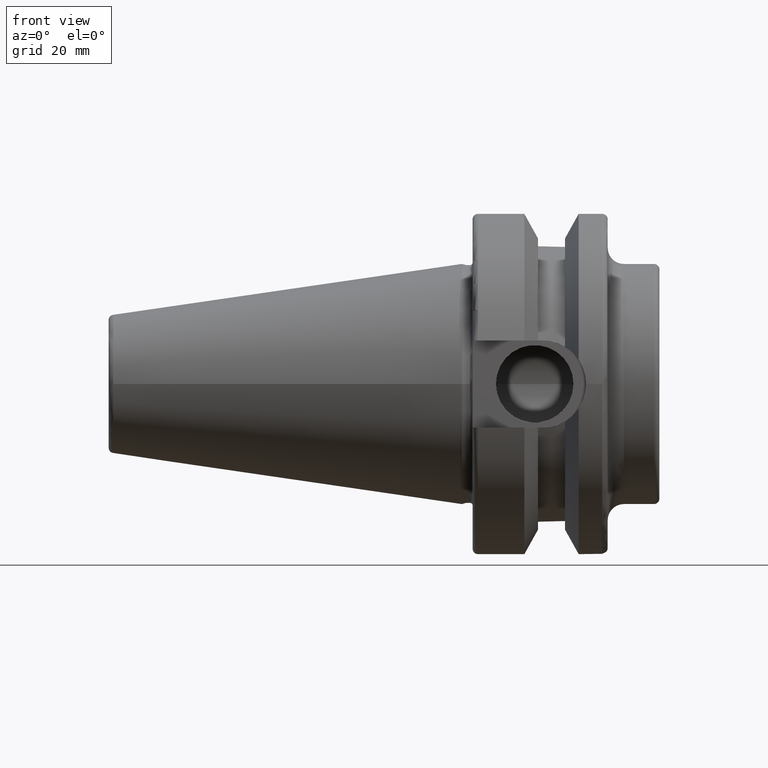
[diagram: clean part render]
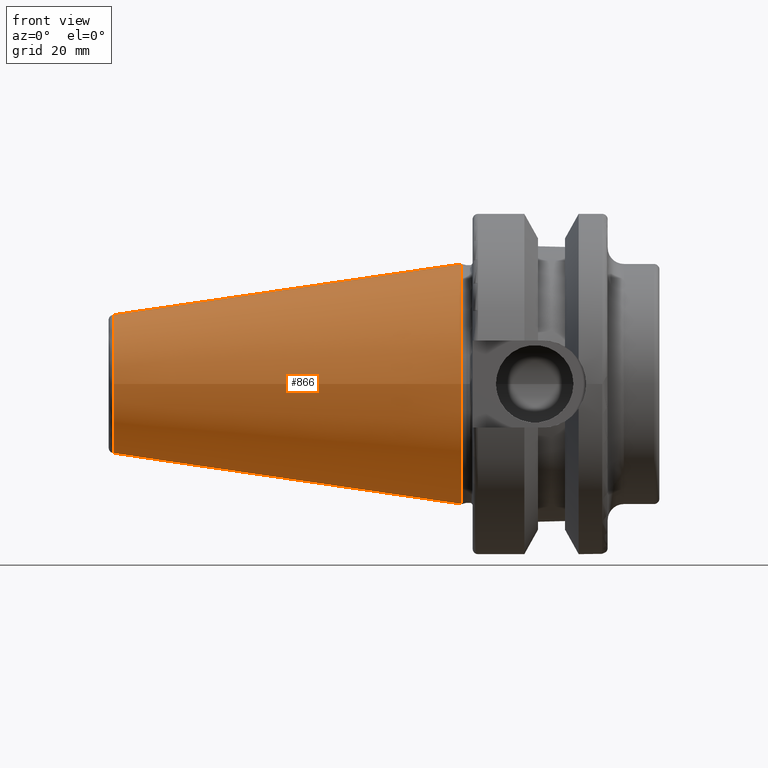
[diagram: same view with one face highlighted and labeled with its STEP entity id]
A machine part, front view. The second image highlights one B-rep face of the part: STEP entity #866.
In plain terms, the highlighted conical surface has half-angle 8.297 deg.
Its self-contained STEP definition (entity closure, byte-faithful):
#25=CONICAL_SURFACE('',#996,17.5186442890469,0.144812498238939);
#128=FACE_OUTER_BOUND('',#189,.T.);
#189=EDGE_LOOP('',(#784,#785,#786,#787,#788));
#234=LINE('',#1668,#278);
#278=VECTOR('',#1258,17.5186442890469);
#334=CIRCLE('',#993,12.8122885780937);
#335=CIRCLE('',#994,12.8122885780937);
#337=CIRCLE('',#997,22.225);
#419=VERTEX_POINT('',#1660);
#420=VERTEX_POINT('',#1661);
#421=VERTEX_POINT('',#1666);
#540=EDGE_CURVE('',#419,#420,#334,.T.);
#541=EDGE_CURVE('',#420,#419,#335,.T.);
#543=EDGE_CURVE('',#421,#421,#337,.T.);
#544=EDGE_CURVE('',#421,#419,#234,.T.);
#784=ORIENTED_EDGE('',*,*,#543,.F.);
#785=ORIENTED_EDGE('',*,*,#544,.T.);
#786=ORIENTED_EDGE('',*,*,#540,.T.);
#787=ORIENTED_EDGE('',*,*,#541,.T.);
#788=ORIENTED_EDGE('',*,*,#544,.F.);
#866=ADVANCED_FACE('',(#128),#25,.T.);
#993=AXIS2_PLACEMENT_3D('',#1662,#1248,#1249);
#994=AXIS2_PLACEMENT_3D('',#1663,#1250,#1251);
#996=AXIS2_PLACEMENT_3D('',#1665,#1254,#1255);
#997=AXIS2_PLACEMENT_3D('',#1667,#1256,#1257);
#1248=DIRECTION('center_axis',(1.,0.,0.));
#1249=DIRECTION('ref_axis',(0.,0.,-1.));
#1250=DIRECTION('center_axis',(1.,0.,0.));
#1251=DIRECTION('ref_axis',(0.,0.,-1.));
#1254=DIRECTION('center_axis',(1.,0.,0.));
#1255=DIRECTION('ref_axis',(0.,1.,0.));
#1256=DIRECTION('center_axis',(1.,0.,0.));
#1257=DIRECTION('ref_axis',(0.,0.,-1.));
#1258=DIRECTION('',(-0.989532981063282,0.144306893071729,1.76724974695192E-17));
#1660=CARTESIAN_POINT('',(-64.5443068930717,-12.8122885780937,-1.56905281969147E-15));
#1661=CARTESIAN_POINT('',(-64.5443068930717,-1.56905281969147E-15,12.8122885780937));
#1662=CARTESIAN_POINT('Origin',(-64.5443068930717,0.,0.));
#1663=CARTESIAN_POINT('Origin',(-64.5443068930717,0.,0.));
#1665=CARTESIAN_POINT('Origin',(-32.2721534465359,0.,0.));
#1666=CARTESIAN_POINT('',(4.44089209850063E-15,-22.225,-2.72177751110499E-15));
#1667=CARTESIAN_POINT('Origin',(1.11022302462516E-15,0.,0.));
#1668=CARTESIAN_POINT('',(-32.2721534465359,-17.5186442890469,-2.14541516539823E-15));